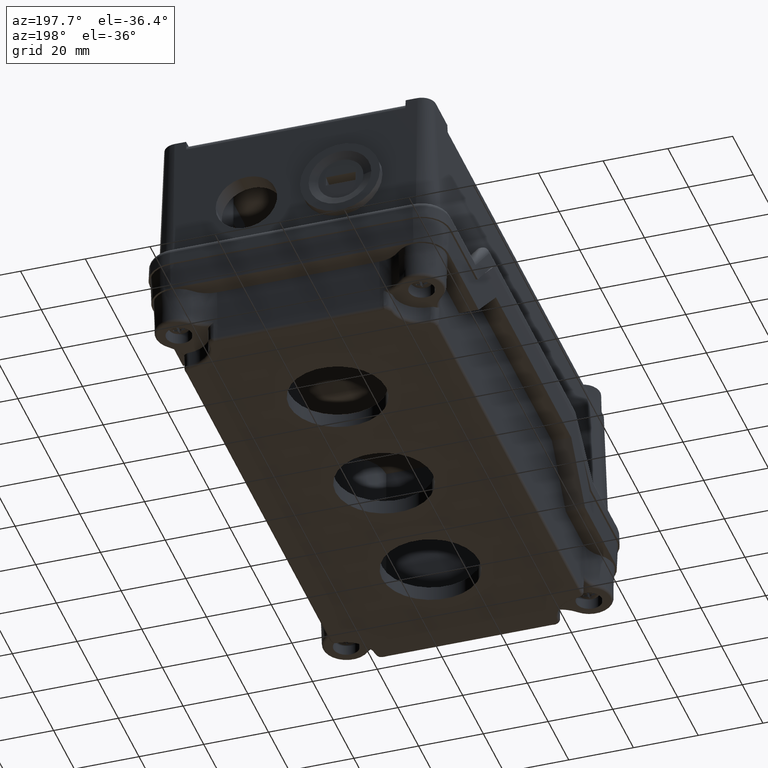
[diagram: clean part render]
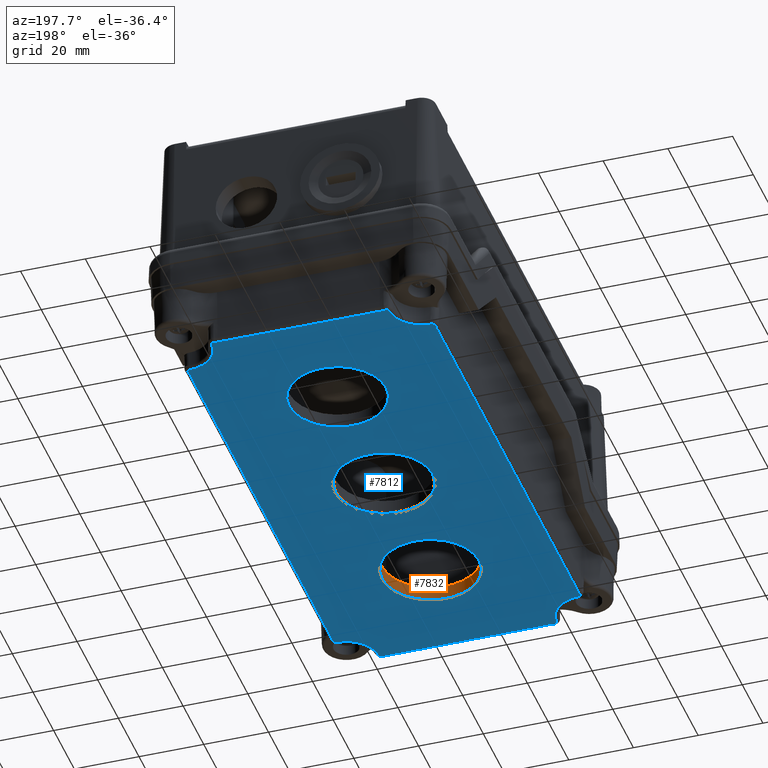
[diagram: same view with the hole feature highlighted: cylindrical wall and planar end face, labeled with their STEP entity ids]
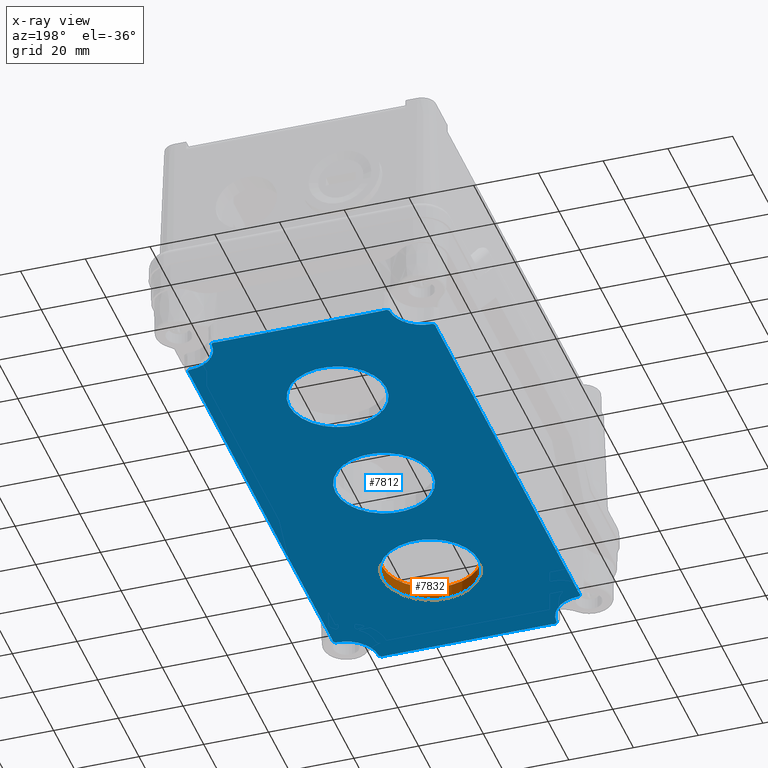
[diagram: x-ray of the same camera — body ghosted, the hole faces saturated]
A machine part, auxiliary view. The highlighted faces form one hole feature of diameter 30 mm: the cylindrical wall (entity #7832, orange) and its adjacent planar end face (entity #7812, blue) — they share a circular edge in the B-rep.
The next image is the same camera in x-ray (body ghosted, the hole faces saturated) — the bore reads through the body.
Wall:
#7801=CARTESIAN_POINT('',(52.783278526198828,-31.297894880833091,40.500000000000000));
#7802=VERTEX_POINT('',#7801);
#7803=CARTESIAN_POINT('',(37.783278526198828,-31.297894880833091,40.500000000000000));
#7804=DIRECTION('',(0.0,0.0,-1.0));
#7805=DIRECTION('',(-1.0,0.0,0.0));
#7806=AXIS2_PLACEMENT_3D('',#7803,#7804,#7805);
#7807=CIRCLE('',#7806,15.0);
#7808=EDGE_CURVE('',#7802,#7802,#7807,.T.);
#7813=CARTESIAN_POINT('',(37.783278526198828,-31.297894880833091,40.500000000000000));
#7814=DIRECTION('',(0.0,0.0,-1.0));
#7815=DIRECTION('',(-1.0,0.0,0.0));
#7816=AXIS2_PLACEMENT_3D('',#7813,#7814,#7815);
#7817=CYLINDRICAL_SURFACE('',#7816,15.0);
#7818=CARTESIAN_POINT('',(52.783278526198828,-31.297894880833091,36.0));
#7819=VERTEX_POINT('',#7818);
#7820=CARTESIAN_POINT('',(37.783278526198828,-31.297894880833091,36.0));
#7821=DIRECTION('',(0.0,0.0,1.0));
#7822=DIRECTION('',(-1.0,0.0,0.0));
#7823=AXIS2_PLACEMENT_3D('',#7820,#7821,#7822);
#7824=CIRCLE('',#7823,15.0);
#7825=EDGE_CURVE('',#7819,#7819,#7824,.T.);
#7826=ORIENTED_EDGE('',*,*,#7825,.F.);
#7827=EDGE_LOOP('',(#7826));
#7828=FACE_OUTER_BOUND('',#7827,.T.);
#7829=ORIENTED_EDGE('',*,*,#7808,.F.);
#7830=EDGE_LOOP('',(#7829));
#7831=FACE_BOUND('',#7830,.T.);
#7832=ADVANCED_FACE('',(#7828,#7831),#7817,.F.);
End face:
#5653=CARTESIAN_POINT('',(-0.336741534578417,82.261391683954855,40.500000000000000));
#5654=VERTEX_POINT('',#5653);
#5670=CARTESIAN_POINT('',(-0.336741534578376,-54.857181445621052,40.500000000000000));
#5671=VERTEX_POINT('',#5670);
#5679=CARTESIAN_POINT('',(-0.336741534578376,-54.857181445621052,40.500000000000000));
#5680=DIRECTION('',(0.0,1.0,0.0));
#5681=VECTOR('',#5680,137.118573129575910);
#5682=LINE('',#5679,#5681);
#5683=EDGE_CURVE('',#5671,#5654,#5682,.T.);
#5693=CARTESIAN_POINT('',(-0.416955998710057,83.585317413578011,40.500000000000000));
#5694=VERTEX_POINT('',#5693);
#5704=CARTESIAN_POINT('',(-11.302430309385489,82.261391683954855,40.500000000000000));
#5705=DIRECTION('',(0.0,0.0,1.0));
#5706=DIRECTION('',(0.998177473758042,0.060346755356137,0.0));
#5707=AXIS2_PLACEMENT_3D('',#5704,#5705,#5706);
#5708=CIRCLE('',#5707,10.965688774807212);
#5709=EDGE_CURVE('',#5654,#5694,#5708,.T.);
#5721=CARTESIAN_POINT('',(-0.416955998710128,-56.181107175244172,40.500000000000000));
#5722=VERTEX_POINT('',#5721);
#5730=CARTESIAN_POINT('',(-11.302430309385379,-54.857181445621052,40.500000000000000));
#5731=DIRECTION('',(0.0,0.0,1.0));
#5732=DIRECTION('',(0.998177473758042,-0.060346755356137,0.0));
#5733=AXIS2_PLACEMENT_3D('',#5730,#5731,#5732);
#5734=CIRCLE('',#5733,10.965688774807031);
#5735=EDGE_CURVE('',#5722,#5671,#5734,.T.);
#5829=CARTESIAN_POINT('',(0.549705304405497,84.705654910625157,40.500000000000000));
#5830=VERTEX_POINT('',#5829);
#5854=CARTESIAN_POINT('',(-0.416955998710058,83.585317413578068,40.500000000000000));
#5855=CARTESIAN_POINT('',(-0.426482221781446,83.663643149079007,40.500000000000000));
#5856=CARTESIAN_POINT('',(-0.426817920238320,83.824573588695159,40.499999999999972));
#5857=CARTESIAN_POINT('',(-0.370713100195674,84.056888824864217,40.499999999999986));
#5858=CARTESIAN_POINT('',(-0.260860025903163,84.270980838755321,40.499999999999964));
#5859=CARTESIAN_POINT('',(-0.104097028126761,84.452078220560054,40.499999999999964));
#5860=CARTESIAN_POINT('',(0.091745346405568,84.591821954585299,40.499999999999979));
#5861=CARTESIAN_POINT('',(0.312842901862356,84.680440202173187,40.499999999999979));
#5862=CARTESIAN_POINT('',(0.470830399737448,84.703552725720130,40.500000000000000));
#5863=CARTESIAN_POINT('',(0.549705304405499,84.705654910625142,40.500000000000000));
#5864=B_SPLINE_CURVE_WITH_KNOTS('',3,(#5854,#5855,#5856,#5857,#5858,#5859,#5860,#5861,#5862,#5863),.UNSPECIFIED.,.F.,.U.,(4,1,1,1,1,1,1,4),(0.0,0.023670874067073,0.047341748134146,0.071012622201219,0.094683496268292,0.118354370335365,0.142025244402438,0.165696118469511),.UNSPECIFIED.);
#5865=EDGE_CURVE('',#5694,#5830,#5864,.T.);
#5967=CARTESIAN_POINT('',(0.549705304405435,-57.301444672291339,40.500000000000000));
#5968=VERTEX_POINT('',#5967);
#5976=CARTESIAN_POINT('',(0.549705304405435,-57.301444672291346,40.500000000000000));
#5977=CARTESIAN_POINT('',(0.470830399736940,-57.299342487386326,40.500000000000000));
#5978=CARTESIAN_POINT('',(0.312842655254321,-57.276229716370928,40.499999999999993));
#5979=CARTESIAN_POINT('',(0.091745102726476,-57.187611460986993,40.500000000000007));
#5980=CARTESIAN_POINT('',(-0.104097348658696,-57.047867619784967,40.500000000000000));
#5981=CARTESIAN_POINT('',(-0.260860245818960,-56.866770372539193,40.500000000000007));
#5982=CARTESIAN_POINT('',(-0.370713232080492,-56.652678481342846,40.500000000000000));
#5983=CARTESIAN_POINT('',(-0.426818008486623,-56.420363312533276,40.500000000000000));
#5984=CARTESIAN_POINT('',(-0.426482221781576,-56.259432910745630,40.500000000000000));
#5985=CARTESIAN_POINT('',(-0.416955998710135,-56.181107175244250,40.500000000000000));
#5986=B_SPLINE_CURVE_WITH_KNOTS('',3,(#5976,#5977,#5978,#5979,#5980,#5981,#5982,#5983,#5984,#5985),.UNSPECIFIED.,.F.,.U.,(4,1,1,1,1,1,1,4),(0.0,0.023670874067206,0.047341748134412,0.071012622201618,0.094683496268824,0.118354370336030,0.142025244403237,0.165696118470443),.UNSPECIFIED.);
#5987=EDGE_CURVE('',#5968,#5722,#5986,.T.);
#5997=CARTESIAN_POINT('',(10.279728734740468,94.435678340959413,40.500000000000000));
#5998=VERTEX_POINT('',#5997);
#6016=CARTESIAN_POINT('',(0.283278526198740,94.702105119166902,40.500000000000000));
#6017=DIRECTION('',(0.0,0.0,1.0));
#6018=DIRECTION('',(0.707106781186545,-0.707106781186550,0.0));
#6019=AXIS2_PLACEMENT_3D('',#6016,#6017,#6018);
#6020=CIRCLE('',#6019,9.999999999999998);
#6021=EDGE_CURVE('',#5830,#5998,#6020,.T.);
#6033=CARTESIAN_POINT('',(10.279728734740479,-67.031468102625610,40.500000000000000));
#6034=VERTEX_POINT('',#6033);
#6042=CARTESIAN_POINT('',(0.283278526198749,-67.297894880833098,40.500000000000000));
#6043=DIRECTION('',(0.0,0.0,1.0));
#6044=DIRECTION('',(0.707106781186548,0.707106781186547,0.0));
#6045=AXIS2_PLACEMENT_3D('',#6042,#6043,#6044);
#6046=CIRCLE('',#6045,10.0);
#6047=EDGE_CURVE('',#6034,#5968,#6046,.T.);
#6157=CARTESIAN_POINT('',(11.400066231787576,95.402339644075767,40.500000000000000));
#6158=VERTEX_POINT('',#6157);
#6182=CARTESIAN_POINT('',(10.279728734740488,94.435678340960152,40.500000000000000));
#6183=CARTESIAN_POINT('',(10.281305366113559,94.494834245348670,40.500000000000000));
#6184=CARTESIAN_POINT('',(10.290442570947079,94.574108159666139,40.499999999999993));
#6185=CARTESIAN_POINT('',(10.327701418307512,94.729348208226753,40.499999999999993));
#6186=CARTESIAN_POINT('',(10.394368548219132,94.895002301182885,40.499999999999979));
#6187=CARTESIAN_POINT('',(10.499935942172067,95.042479980953459,40.499999999999957));
#6188=CARTESIAN_POINT('',(10.610011665765613,95.155813483902918,40.499999999999964));
#6189=CARTESIAN_POINT('',(10.733994612333028,95.256491751047847,40.499999999999972));
#6190=CARTESIAN_POINT('',(10.930087125182645,95.356670673482753,40.499999999999979));
#6191=CARTESIAN_POINT('',(11.161999683931755,95.412155736893453,40.500000000000000));
#6192=CARTESIAN_POINT('',(11.321740859225304,95.411865823005414,40.500000000000000));
#6193=CARTESIAN_POINT('',(11.400066231787580,95.402339644075767,40.500000000000000));
#6194=B_SPLINE_CURVE_WITH_KNOTS('',3,(#6182,#6183,#6184,#6185,#6186,#6187,#6188,#6189,#6190,#6191,#6192,#6193),.UNSPECIFIED.,.F.,.U.,(4,1,1,1,1,1,1,1,1,4),(0.0,0.017753073287348,0.023670764383131,0.047341528766262,0.071012293149393,0.076929984245175,0.094683057532524,0.118353821915654,0.142024586298785,0.165695350681916),.UNSPECIFIED.);
#6195=EDGE_CURVE('',#5998,#6158,#6194,.T.);
#6315=CARTESIAN_POINT('',(11.400066231787580,-67.998129405741878,40.500000000000000));
#6316=VERTEX_POINT('',#6315);
#6324=CARTESIAN_POINT('',(11.400066231787580,-67.998129405741878,40.500000000000000));
#6325=CARTESIAN_POINT('',(11.321740859224745,-68.007655584671582,40.500000000000000));
#6326=CARTESIAN_POINT('',(11.082498934690406,-68.008436048963645,40.500000000000036));
#6327=CARTESIAN_POINT('',(10.815638859349370,-67.910170913589809,40.500000000000050));
#6328=CARTESIAN_POINT('',(10.625191949040410,-67.764650366488425,40.500000000000078));
#6329=CARTESIAN_POINT('',(10.511844708894511,-67.654675235715416,40.500000000000064));
#6330=CARTESIAN_POINT('',(10.435415112740520,-67.548255114636760,40.500000000000085));
#6331=CARTESIAN_POINT('',(10.388992703377404,-67.460570353079461,40.500000000000078));
#6332=CARTESIAN_POINT('',(10.354051155022898,-67.389661117339386,40.500000000000078));
#6333=CARTESIAN_POINT('',(10.302276953244990,-67.249824706873042,40.500000000000085));
#6334=CARTESIAN_POINT('',(10.281830909904604,-67.110342641811513,40.500000000000000));
#6335=CARTESIAN_POINT('',(10.279728734740496,-67.031468102626263,40.500000000000000));
#6336=B_SPLINE_CURVE_WITH_KNOTS('',3,(#6324,#6325,#6326,#6327,#6328,#6329,#6330,#6331,#6332,#6333,#6334,#6335),.UNSPECIFIED.,.F.,.U.,(4,1,1,1,1,1,1,1,1,4),(0.0,0.023670764383300,0.071012293149899,0.082847675341549,0.094683057533199,0.118353821916499,0.121312667464411,0.124271513012324,0.142024586299799,0.165695350683099),.UNSPECIFIED.);
#6337=EDGE_CURVE('',#6316,#6034,#6336,.T.);
#6347=CARTESIAN_POINT('',(12.723991961410794,95.322125179943953,40.500000000000000));
#6348=VERTEX_POINT('',#6347);
#6358=CARTESIAN_POINT('',(12.723991961410796,106.287813954751130,40.500000000000000));
#6359=DIRECTION('',(0.0,0.0,1.0));
#6360=DIRECTION('',(-0.060346755356137,-0.998177473758042,0.0));
#6361=AXIS2_PLACEMENT_3D('',#6358,#6359,#6360);
#6362=CIRCLE('',#6361,10.965688774807161);
#6363=EDGE_CURVE('',#6158,#6348,#6362,.T.);
#6375=CARTESIAN_POINT('',(12.723991961410801,-67.917914941610093,40.500000000000000));
#6376=VERTEX_POINT('',#6375);
#6384=CARTESIAN_POINT('',(12.723991961410805,-78.883603716417213,40.500000000000000));
#6385=DIRECTION('',(0.0,0.0,1.0));
#6386=DIRECTION('',(-0.060346755356138,0.998177473758042,0.0));
#6387=AXIS2_PLACEMENT_3D('',#6384,#6385,#6386);
#6388=CIRCLE('',#6387,10.965688774807122);
#6389=EDGE_CURVE('',#6376,#6316,#6388,.T.);
#6407=CARTESIAN_POINT('',(62.842565090986717,95.322125179944024,40.500000000000000));
#6408=VERTEX_POINT('',#6407);
#6423=CARTESIAN_POINT('',(12.723991961410794,95.322125179943953,40.500000000000000));
#6424=DIRECTION('',(1.0,0.0,0.0));
#6425=VECTOR('',#6424,50.118573129575921);
#6426=LINE('',#6423,#6425);
#6427=EDGE_CURVE('',#6348,#6408,#6426,.T.);
#6439=CARTESIAN_POINT('',(62.842565090986710,-67.917914941610206,40.500000000000000));
#6440=VERTEX_POINT('',#6439);
#6448=CARTESIAN_POINT('',(62.842565090986710,-67.917914941610206,40.500000000000000));
#6449=DIRECTION('',(-1.0,0.0,0.0));
#6450=VECTOR('',#6449,50.118573129575907);
#6451=LINE('',#6448,#6450);
#6452=EDGE_CURVE('',#6440,#6376,#6451,.T.);
#6469=CARTESIAN_POINT('',(64.166490820609866,95.402339644075752,40.500000000000000));
#6470=VERTEX_POINT('',#6469);
#6480=CARTESIAN_POINT('',(62.842565090986717,106.287813954751130,40.500000000000000));
#6481=DIRECTION('',(0.0,0.0,1.0));
#6482=DIRECTION('',(0.060346755356137,-0.998177473758042,0.0));
#6483=AXIS2_PLACEMENT_3D('',#6480,#6481,#6482);
#6484=CIRCLE('',#6483,10.965688774807163);
#6485=EDGE_CURVE('',#6408,#6470,#6484,.T.);
#6497=CARTESIAN_POINT('',(64.166490820609880,-67.998129405742063,40.500000000000000));
#6498=VERTEX_POINT('',#6497);
#6506=CARTESIAN_POINT('',(62.842565090986710,-78.883603716417312,40.500000000000000));
#6507=DIRECTION('',(0.0,0.0,1.0));
#6508=DIRECTION('',(0.060346755356140,0.998177473758042,0.0));
#6509=AXIS2_PLACEMENT_3D('',#6506,#6507,#6508);
#6510=CIRCLE('',#6509,10.965688774807038);
#6511=EDGE_CURVE('',#6498,#6440,#6510,.T.);
#6621=CARTESIAN_POINT('',(65.286828317657026,94.435678340960166,40.500000000000000));
#6622=VERTEX_POINT('',#6621);
#6648=CARTESIAN_POINT('',(64.166490820609937,95.402339644075752,40.500000000000000));
#6649=CARTESIAN_POINT('',(64.225235122235645,95.409484311379288,40.500000000000000));
#6650=CARTESIAN_POINT('',(64.304994814695021,95.412097482648107,40.500000000000000));
#6651=CARTESIAN_POINT('',(64.464019585367581,95.398025954093171,40.500000000000000));
#6652=CARTESIAN_POINT('',(64.637659336339723,95.356347805054028,40.499999999999993));
#6653=CARTESIAN_POINT('',(64.798995787509867,95.273474023900192,40.500000000000007));
#6654=CARTESIAN_POINT('',(64.927187020352520,95.181155539673242,40.500000000000007));
#6655=CARTESIAN_POINT('',(65.044919666953390,95.073199970460649,40.500000000000000));
#6656=CARTESIAN_POINT('',(65.172675923722750,94.893884717701866,40.500000000000000));
#6657=CARTESIAN_POINT('',(65.261549404117432,94.672597035913924,40.499999999999993));
#6658=CARTESIAN_POINT('',(65.284726132752013,94.514553245628193,40.500000000000000));
#6659=CARTESIAN_POINT('',(65.286828317657026,94.435678340960152,40.500000000000000));
#6660=B_SPLINE_CURVE_WITH_KNOTS('',3,(#6648,#6649,#6650,#6651,#6652,#6653,#6654,#6655,#6656,#6657,#6658,#6659),.UNSPECIFIED.,.F.,.U.,(4,1,1,1,1,1,1,1,1,4),(0.0,0.017753155550305,0.023670874067073,0.047341748134147,0.071012622201220,0.076930340717988,0.094683496268293,0.118354370335366,0.142025244402440,0.165696118469513),.UNSPECIFIED.);
#6661=EDGE_CURVE('',#6470,#6622,#6660,.T.);
#6781=CARTESIAN_POINT('',(65.286828317657054,-67.031468102626505,40.500000000000000));
#6782=VERTEX_POINT('',#6781);
#6790=CARTESIAN_POINT('',(65.286828317657054,-67.031468102626491,40.500000000000000));
#6791=CARTESIAN_POINT('',(65.284726132752041,-67.110343007294972,40.500000000000000));
#6792=CARTESIAN_POINT('',(65.250341075509212,-67.347104648975204,40.500000000000057));
#6793=CARTESIAN_POINT('',(65.114112660825270,-67.596686286916338,40.500000000000064));
#6794=CARTESIAN_POINT('',(64.942312332366939,-67.763833070765173,40.500000000000092));
#6795=CARTESIAN_POINT('',(64.816957597348221,-67.859886106566222,40.500000000000092));
#6796=CARTESIAN_POINT('',(64.700512177144759,-67.919930909974738,40.500000000000135));
#6797=CARTESIAN_POINT('',(64.606970682334520,-67.953020112342585,40.500000000000135));
#6798=CARTESIAN_POINT('',(64.531705783169329,-67.977203377436410,40.500000000000135));
#6799=CARTESIAN_POINT('',(64.385802651295833,-68.007921251242067,40.500000000000107));
#6800=CARTESIAN_POINT('',(64.244816556111331,-68.007655628813524,40.500000000000000));
#6801=CARTESIAN_POINT('',(64.166490820609951,-67.998129405742077,40.500000000000000));
#6802=B_SPLINE_CURVE_WITH_KNOTS('',3,(#6790,#6791,#6792,#6793,#6794,#6795,#6796,#6797,#6798,#6799,#6800,#6801),.UNSPECIFIED.,.F.,.U.,(4,1,1,1,1,1,1,1,1,4),(0.0,0.023670874067206,0.071012622201619,0.082848059235223,0.094683496268826,0.118354370336032,0.121313229594433,0.124272088852834,0.142025244403239,0.165696118470445),.UNSPECIFIED.);
#6803=EDGE_CURVE('',#6782,#6498,#6802,.T.);
#6813=CARTESIAN_POINT('',(75.016851747991311,84.705654910625171,40.500000000000000));
#6814=VERTEX_POINT('',#6813);
#6832=CARTESIAN_POINT('',(75.283278526198771,94.702105119166902,40.500000000000000));
#6833=DIRECTION('',(0.0,0.0,1.0));
#6834=DIRECTION('',(-0.707106781186549,-0.707106781186546,0.0));
#6835=AXIS2_PLACEMENT_3D('',#6832,#6833,#6834);
#6836=CIRCLE('',#6835,10.0);
#6837=EDGE_CURVE('',#6622,#6814,#6836,.T.);
#6849=CARTESIAN_POINT('',(75.016851747991566,-57.301444672291339,40.500000000000000));
#6850=VERTEX_POINT('',#6849);
#6858=CARTESIAN_POINT('',(75.283278526198799,-67.297894880833070,40.500000000000000));
#6859=DIRECTION('',(0.0,0.0,1.0));
#6860=DIRECTION('',(-0.707106781186543,0.707106781186552,0.0));
#6861=AXIS2_PLACEMENT_3D('',#6858,#6859,#6860);
#6862=CIRCLE('',#6861,9.999999999999998);
#6863=EDGE_CURVE('',#6850,#6782,#6862,.T.);
#6965=CARTESIAN_POINT('',(75.983513051107707,83.585317413578068,40.500000000000000));
#6966=VERTEX_POINT('',#6965);
#6989=CARTESIAN_POINT('',(75.016851747992078,84.705654910625157,40.500000000000000));
#6990=CARTESIAN_POINT('',(75.095726287176774,84.703552735461059,40.500000000000000));
#6991=CARTESIAN_POINT('',(75.255284743809895,84.680045295867728,40.499999999999986));
#6992=CARTESIAN_POINT('',(75.412051562404955,84.616628574739764,40.499999999999986));
#6993=CARTESIAN_POINT('',(75.498308975641663,84.567580905476831,40.499999999999979));
#6994=CARTESIAN_POINT('',(75.600566929375020,84.505260245615972,40.499999999999972));
#6995=CARTESIAN_POINT('',(75.713872968102649,84.407662183829871,40.499999999999972));
#6996=CARTESIAN_POINT('',(75.895337124958118,84.169967787665826,40.499999999999979));
#6997=CARTESIAN_POINT('',(75.993918867431162,83.902818740156860,40.499999999999986));
#6998=CARTESIAN_POINT('',(75.993039230037354,83.663642786140343,40.500000000000000));
#6999=CARTESIAN_POINT('',(75.983513051107707,83.585317413578068,40.500000000000000));
#7000=B_SPLINE_CURVE_WITH_KNOTS('',3,(#6989,#6990,#6991,#6992,#6993,#6994,#6995,#6996,#6997,#6998,#6999),.UNSPECIFIED.,.F.,.U.,(4,1,1,1,1,1,1,1,4),(0.0,0.023670764383131,0.047341528766262,0.050300374314154,0.053259219862045,0.082847675340959,0.094683057532525,0.142024586298787,0.165695350681918),.UNSPECIFIED.);
#7001=EDGE_CURVE('',#6814,#6966,#7000,.T.);
#7121=CARTESIAN_POINT('',(75.983513051107835,-56.181107175244229,40.500000000000000));
#7122=VERTEX_POINT('',#7121);
#7130=CARTESIAN_POINT('',(75.983513051107835,-56.181107175244229,40.500000000000000));
#7131=CARTESIAN_POINT('',(75.993039230037553,-56.259432547807066,40.500000000000000));
#7132=CARTESIAN_POINT('',(75.993820033803317,-56.498673586225920,40.499999999999986));
#7133=CARTESIAN_POINT('',(75.895555127371637,-56.765533385732653,40.500000000000000));
#7134=CARTESIAN_POINT('',(75.750034700342511,-56.955980157212181,40.500000000000007));
#7135=CARTESIAN_POINT('',(75.640059582835903,-57.069327382517947,40.500000000000000));
#7136=CARTESIAN_POINT('',(75.533639395074246,-57.145757173383117,40.500000000000014));
#7137=CARTESIAN_POINT('',(75.445954613426437,-57.192179637212590,40.500000000000014));
#7138=CARTESIAN_POINT('',(75.375045349351083,-57.227121234119025,40.500000000000014));
#7139=CARTESIAN_POINT('',(75.235208930611464,-57.278895492240366,40.500000000000028));
#7140=CARTESIAN_POINT('',(75.095726287177470,-57.299342497127206,40.500000000000000));
#7141=CARTESIAN_POINT('',(75.016851747992206,-57.301444672291311,40.500000000000000));
#7142=B_SPLINE_CURVE_WITH_KNOTS('',3,(#7130,#7131,#7132,#7133,#7134,#7135,#7136,#7137,#7138,#7139,#7140,#7141),.UNSPECIFIED.,.F.,.U.,(4,1,1,1,1,1,1,1,1,4),(0.0,0.023670764383300,0.071012293149901,0.082847675341551,0.094683057533201,0.118353821916501,0.121312667464414,0.124271513012326,0.142024586299802,0.165695350683102),.UNSPECIFIED.);
#7143=EDGE_CURVE('',#7122,#6850,#7142,.T.);
#7153=CARTESIAN_POINT('',(75.903298586975893,82.261391683954841,40.500000000000000));
#7154=VERTEX_POINT('',#7153);
#7164=CARTESIAN_POINT('',(86.868987361783013,82.261391683954855,40.500000000000000));
#7165=DIRECTION('',(0.0,0.0,1.000000000000000));
#7166=DIRECTION('',(-0.998177473758042,0.060346755356136,0.0));
#7167=AXIS2_PLACEMENT_3D('',#7164,#7165,#7166);
#7168=CIRCLE('',#7167,10.965688774807118);
#7169=EDGE_CURVE('',#6966,#7154,#7168,.T.);
#7181=CARTESIAN_POINT('',(75.903298586976035,-54.857181445620952,40.500000000000000));
#7182=VERTEX_POINT('',#7181);
#7190=CARTESIAN_POINT('',(86.868987361783041,-54.857181445620959,40.500000000000000));
#7191=DIRECTION('',(0.0,0.0,1.0));
#7192=DIRECTION('',(-0.998177473758042,-0.060346755356140,0.0));
#7193=AXIS2_PLACEMENT_3D('',#7190,#7191,#7192);
#7194=CIRCLE('',#7193,10.965688774807003);
#7195=EDGE_CURVE('',#7182,#7122,#7194,.T.);
#7214=CARTESIAN_POINT('',(75.903298586975893,82.261391683954841,40.500000000000000));
#7215=DIRECTION('',(0.0,-1.0,0.0));
#7216=VECTOR('',#7215,137.118573129575790);
#7217=LINE('',#7214,#7216);
#7218=EDGE_CURVE('',#7154,#7182,#7217,.T.);
#7748=CARTESIAN_POINT('',(37.783278526198764,13.702105119166925,40.500000000000000));
#7749=DIRECTION('',(0.0,0.0,1.0));
#7750=DIRECTION('',(1.0,0.0,0.0));
#7751=AXIS2_PLACEMENT_3D('',#7748,#7749,#7750);
#7752=PLANE('',#7751);
#7753=ORIENTED_EDGE('',*,*,#5683,.F.);
#7754=ORIENTED_EDGE('',*,*,#5735,.F.);
#7755=ORIENTED_EDGE('',*,*,#5987,.F.);
#7756=ORIENTED_EDGE('',*,*,#6047,.F.);
#7757=ORIENTED_EDGE('',*,*,#6337,.F.);
#7758=ORIENTED_EDGE('',*,*,#6389,.F.);
#7759=ORIENTED_EDGE('',*,*,#6452,.F.);
#7760=ORIENTED_EDGE('',*,*,#6511,.F.);
#7761=ORIENTED_EDGE('',*,*,#6803,.F.);
#7762=ORIENTED_EDGE('',*,*,#6863,.F.);
#7763=ORIENTED_EDGE('',*,*,#7143,.F.);
#7764=ORIENTED_EDGE('',*,*,#7195,.F.);
#7765=ORIENTED_EDGE('',*,*,#7218,.F.);
#7766=ORIENTED_EDGE('',*,*,#7169,.F.);
#7767=ORIENTED_EDGE('',*,*,#7001,.F.);
#7768=ORIENTED_EDGE('',*,*,#6837,.F.);
#7769=ORIENTED_EDGE('',*,*,#6661,.F.);
#7770=ORIENTED_EDGE('',*,*,#6485,.F.);
#7771=ORIENTED_EDGE('',*,*,#6427,.F.);
#7772=ORIENTED_EDGE('',*,*,#6363,.F.);
#7773=ORIENTED_EDGE('',*,*,#6195,.F.);
#7774=ORIENTED_EDGE('',*,*,#6021,.F.);
#7775=ORIENTED_EDGE('',*,*,#5865,.F.);
#7776=ORIENTED_EDGE('',*,*,#5709,.F.);
#7777=EDGE_LOOP('',(#7753,#7754,#7755,#7756,#7757,#7758,#7759,#7760,#7761,#7762,#7763,#7764,#7765,#7766,#7767,#7768,#7769,#7770,#7771,#7772,#7773,#7774,#7775,#7776));
#7778=FACE_OUTER_BOUND('',#7777,.T.);
#7779=CARTESIAN_POINT('',(52.783278526198778,58.702105119166916,40.500000000000000));
#7780=VERTEX_POINT('',#7779);
#7781=CARTESIAN_POINT('',(37.783278526198778,58.702105119166916,40.500000000000000));
#7782=DIRECTION('',(0.0,0.0,-1.0));
#7783=DIRECTION('',(-1.0,0.0,0.0));
#7784=AXIS2_PLACEMENT_3D('',#7781,#7782,#7783);
#7785=CIRCLE('',#7784,15.0);
#7786=EDGE_CURVE('',#7780,#7780,#7785,.T.);
#7787=ORIENTED_EDGE('',*,*,#7786,.T.);
#7788=EDGE_LOOP('',(#7787));
#7789=FACE_BOUND('',#7788,.T.);
#7790=CARTESIAN_POINT('',(52.783278526198814,13.702105119166912,40.500000000000000));
#7791=VERTEX_POINT('',#7790);
#7792=CARTESIAN_POINT('',(37.783278526198821,13.702105119166909,40.500000000000000));
#7793=DIRECTION('',(0.0,0.0,-1.0));
#7794=DIRECTION('',(-1.0,0.0,0.0));
#7795=AXIS2_PLACEMENT_3D('',#7792,#7793,#7794);
#7796=CIRCLE('',#7795,15.0);
#7797=EDGE_CURVE('',#7791,#7791,#7796,.T.);
#7798=ORIENTED_EDGE('',*,*,#7797,.T.);
#7799=EDGE_LOOP('',(#7798));
#7800=FACE_BOUND('',#7799,.T.);
#7801=CARTESIAN_POINT('',(52.783278526198828,-31.297894880833091,40.500000000000000));
#7802=VERTEX_POINT('',#7801);
#7803=CARTESIAN_POINT('',(37.783278526198828,-31.297894880833091,40.500000000000000));
#7804=DIRECTION('',(0.0,0.0,-1.0));
#7805=DIRECTION('',(-1.0,0.0,0.0));
#7806=AXIS2_PLACEMENT_3D('',#7803,#7804,#7805);
#7807=CIRCLE('',#7806,15.0);
#7808=EDGE_CURVE('',#7802,#7802,#7807,.T.);
#7809=ORIENTED_EDGE('',*,*,#7808,.T.);
#7810=EDGE_LOOP('',(#7809));
#7811=FACE_BOUND('',#7810,.T.);
#7812=ADVANCED_FACE('',(#7778,#7789,#7800,#7811),#7752,.T.);